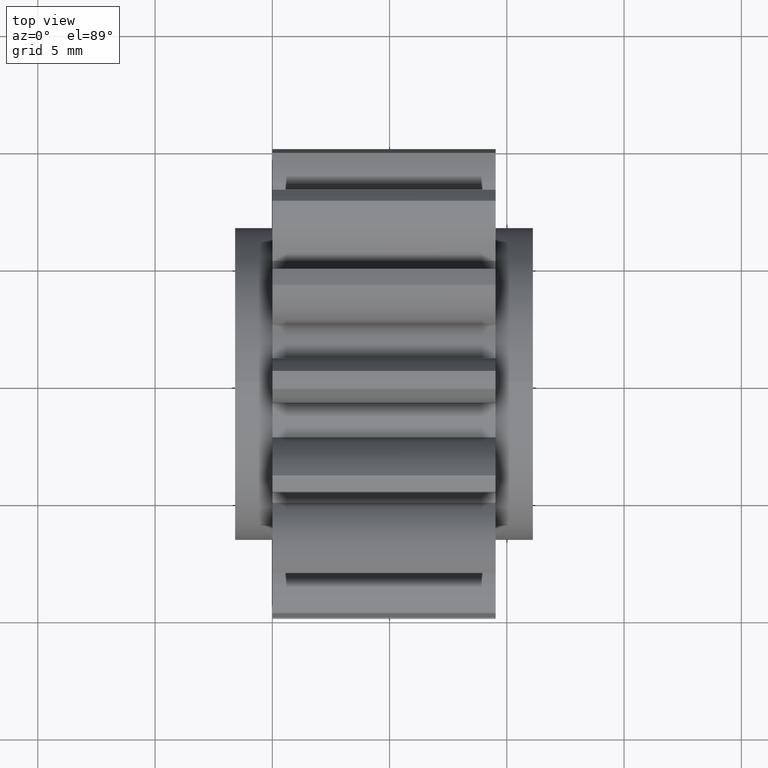
[diagram: clean part render]
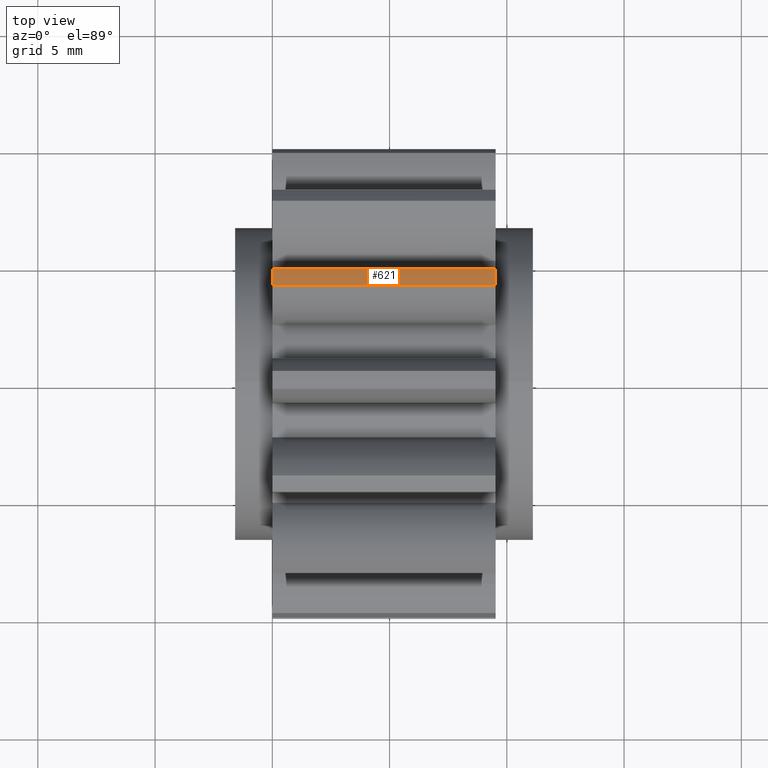
[diagram: same view with one face highlighted and labeled with its STEP entity id]
A machine part, top view. The second image highlights one B-rep face of the part: STEP entity #621.
In plain terms, the highlighted cylindrical surface (partial cylindrical patch) has radius 10.16 mm, axis along (-1, -0, -0).
Its self-contained STEP definition (entity closure, byte-faithful):
#90 = CARTESIAN_POINT ( 'NONE',  ( 0.3750000000000000600, 0.1870673311214633400, 0.3535616122079614500 ) ) ;
#194 = CARTESIAN_POINT ( 'NONE',  ( 0.0000000000000000000, 0.1597910262011720000, 0.3666971883524284800 ) ) ;
#286 = DIRECTION ( 'NONE',  ( 1.000000000000000000, -0.0000000000000000000, -0.0000000000000000000 ) ) ;
#365 = CARTESIAN_POINT ( 'NONE',  ( 0.2839999999999999700, 0.1870673311214633400, 0.3535616122079614500 ) ) ;
#519 = FACE_OUTER_BOUND ( 'NONE', #1316, .T. ) ;
#520 = AXIS2_PLACEMENT_3D ( 'NONE', #1311, #685, #1946 ) ;
#556 = EDGE_CURVE ( 'NONE', #2331, #1678, #1642, .T. ) ;
#559 = AXIS2_PLACEMENT_3D ( 'NONE', #778, #739, #732 ) ;
#621 = ADVANCED_FACE ( 'NONE', ( #519 ), #1983, .T. ) ;
#641 = ORIENTED_EDGE ( 'NONE', *, *, #556, .F. ) ;
#642 = ORIENTED_EDGE ( 'NONE', *, *, #2168, .T. ) ;
#647 = ORIENTED_EDGE ( 'NONE', *, *, #1604, .F. ) ;
#665 = ORIENTED_EDGE ( 'NONE', *, *, #2217, .F. ) ;
#685 = DIRECTION ( 'NONE',  ( -1.000000000000000000, -0.0000000000000000000, -0.0000000000000000000 ) ) ;
#732 = DIRECTION ( 'NONE',  ( 0.0000000000000000000, 0.0000000000000000000, 1.000000000000000000 ) ) ;
#739 = DIRECTION ( 'NONE',  ( -1.000000000000000000, 0.0000000000000000000, 0.0000000000000000000 ) ) ;
#778 = CARTESIAN_POINT ( 'NONE',  ( 0.3750000000000000600, 0.0000000000000000000, 0.0000000000000000000 ) ) ;
#880 = CARTESIAN_POINT ( 'NONE',  ( 0.0000000000000000000, 0.1870673311214633100, 0.3535616122079614500 ) ) ;
#1177 = AXIS2_PLACEMENT_3D ( 'NONE', #2212, #2178, #2245 ) ;
#1311 = CARTESIAN_POINT ( 'NONE',  ( 0.0000000000000000000, 0.0000000000000000000, 0.0000000000000000000 ) ) ;
#1316 = EDGE_LOOP ( 'NONE', ( #641, #642, #647, #665 ) ) ;
#1531 = VECTOR ( 'NONE', #2523, 39.37007874015748100 ) ;
#1604 = EDGE_CURVE ( 'NONE', #2562, #1825, #2169, .T. ) ;
#1642 = LINE ( 'NONE', #2526, #1531 ) ;
#1678 = VERTEX_POINT ( 'NONE', #194 ) ;
#1779 = CARTESIAN_POINT ( 'NONE',  ( 0.3750000000000000600, 0.1597910262011720300, 0.3666971883524285400 ) ) ;
#1811 = CIRCLE ( 'NONE', #520, 0.4000000000000000800 ) ;
#1825 = VERTEX_POINT ( 'NONE', #90 ) ;
#1918 = CIRCLE ( 'NONE', #559, 0.4000000000000000800 ) ;
#1946 = DIRECTION ( 'NONE',  ( 0.0000000000000000000, 0.0000000000000000000, 1.000000000000000000 ) ) ;
#1983 = CYLINDRICAL_SURFACE ( 'NONE', #1177, 0.4000000000000000800 ) ;
#2165 = VECTOR ( 'NONE', #286, 39.37007874015748100 ) ;
#2168 = EDGE_CURVE ( 'NONE', #2331, #1825, #1918, .T. ) ;
#2169 = LINE ( 'NONE', #365, #2165 ) ;
#2178 = DIRECTION ( 'NONE',  ( -1.000000000000000000, -0.0000000000000000000, -0.0000000000000000000 ) ) ;
#2212 = CARTESIAN_POINT ( 'NONE',  ( -0.3937007874015748300, 0.0000000000000000000, 0.0000000000000000000 ) ) ;
#2217 = EDGE_CURVE ( 'NONE', #1678, #2562, #1811, .T. ) ;
#2245 = DIRECTION ( 'NONE',  ( 0.0000000000000000000, 0.0000000000000000000, 1.000000000000000000 ) ) ;
#2331 = VERTEX_POINT ( 'NONE', #1779 ) ;
#2523 = DIRECTION ( 'NONE',  ( -1.000000000000000000, 0.0000000000000000000, 0.0000000000000000000 ) ) ;
#2526 = CARTESIAN_POINT ( 'NONE',  ( 0.2839999999999999200, 0.1597910262011720000, 0.3666971883524284800 ) ) ;
#2562 = VERTEX_POINT ( 'NONE', #880 ) ;